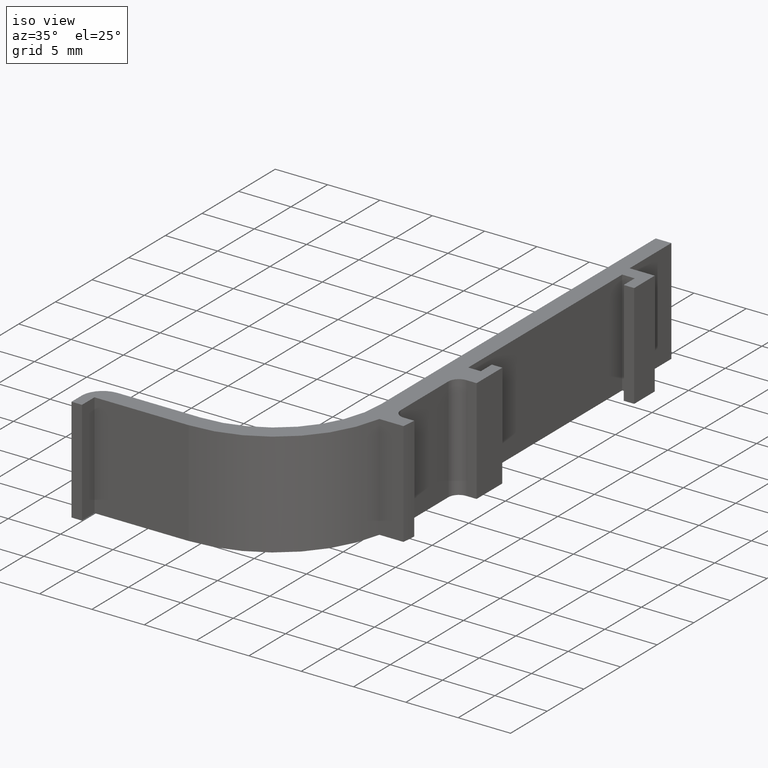
[diagram: clean part render]
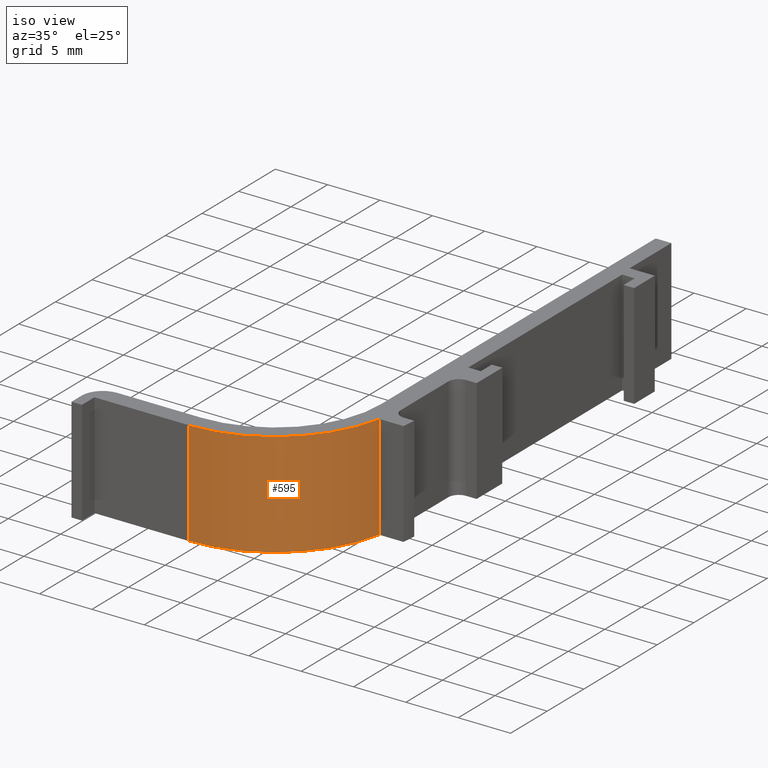
[diagram: same view with one face highlighted and labeled with its STEP entity id]
A machine part, iso view. The second image highlights one B-rep face of the part: STEP entity #595.
In plain terms, the highlighted cylindrical surface (partial cylindrical patch) has radius 11.8 mm, axis along (0, 0, 1).
Its self-contained STEP definition (entity closure, byte-faithful):
#20=CYLINDRICAL_SURFACE('',#639,11.8);
#21=CIRCLE('',#603,11.8);
#29=CIRCLE('',#615,11.8);
#59=FACE_OUTER_BOUND('',#89,.T.);
#89=EDGE_LOOP('',(#529,#530,#531,#532));
#96=LINE('',#810,#168);
#162=LINE('',#966,#234);
#168=VECTOR('',#650,10.);
#234=VECTOR('',#792,10.);
#238=VERTEX_POINT('',#804);
#240=VERTEX_POINT('',#808);
#241=VERTEX_POINT('',#812);
#272=VERTEX_POINT('',#882);
#296=EDGE_CURVE('',#240,#238,#96,.T.);
#297=EDGE_CURVE('',#240,#241,#21,.T.);
#332=EDGE_CURVE('',#238,#272,#29,.T.);
#374=EDGE_CURVE('',#272,#241,#162,.T.);
#529=ORIENTED_EDGE('',*,*,#297,.T.);
#530=ORIENTED_EDGE('',*,*,#374,.F.);
#531=ORIENTED_EDGE('',*,*,#332,.F.);
#532=ORIENTED_EDGE('',*,*,#296,.F.);
#595=ADVANCED_FACE('',(#59),#20,.T.);
#603=AXIS2_PLACEMENT_3D('',#813,#653,#654);
#615=AXIS2_PLACEMENT_3D('',#883,#704,#705);
#639=AXIS2_PLACEMENT_3D('',#965,#790,#791);
#650=DIRECTION('',(0.,0.,-1.));
#653=DIRECTION('center_axis',(0.,0.,-1.));
#654=DIRECTION('ref_axis',(1.88173394004264E-16,-1.,0.));
#704=DIRECTION('center_axis',(0.,0.,-1.));
#705=DIRECTION('ref_axis',(-0.97729907046917,0.211864406779659,0.));
#790=DIRECTION('center_axis',(0.,0.,1.));
#791=DIRECTION('ref_axis',(1.88173394004264E-16,-1.,0.));
#792=DIRECTION('',(0.,0.,1.));
#804=CARTESIAN_POINT('',(1.57367703022684,7.70000000000002,-5.));
#808=CARTESIAN_POINT('',(1.57367703022684,7.70000000000002,5.));
#810=CARTESIAN_POINT('',(1.57367703022684,7.70000000000002,5.));
#812=CARTESIAN_POINT('',(-9.99999999999999,-1.8,5.));
#813=CARTESIAN_POINT('Origin',(-9.99999999999999,10.,5.));
#882=CARTESIAN_POINT('',(-9.99999999999999,-1.8,-5.));
#883=CARTESIAN_POINT('Origin',(-10.,10.,-5.));
#965=CARTESIAN_POINT('Origin',(-9.99999999999999,10.,0.));
#966=CARTESIAN_POINT('',(-9.99999999999999,-1.8,0.));